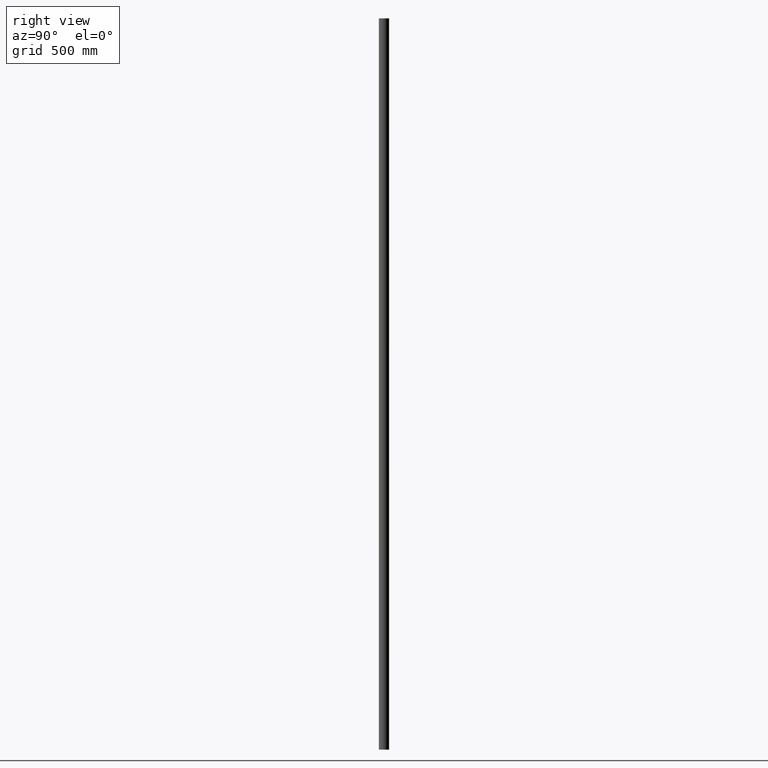
[diagram: clean part render]
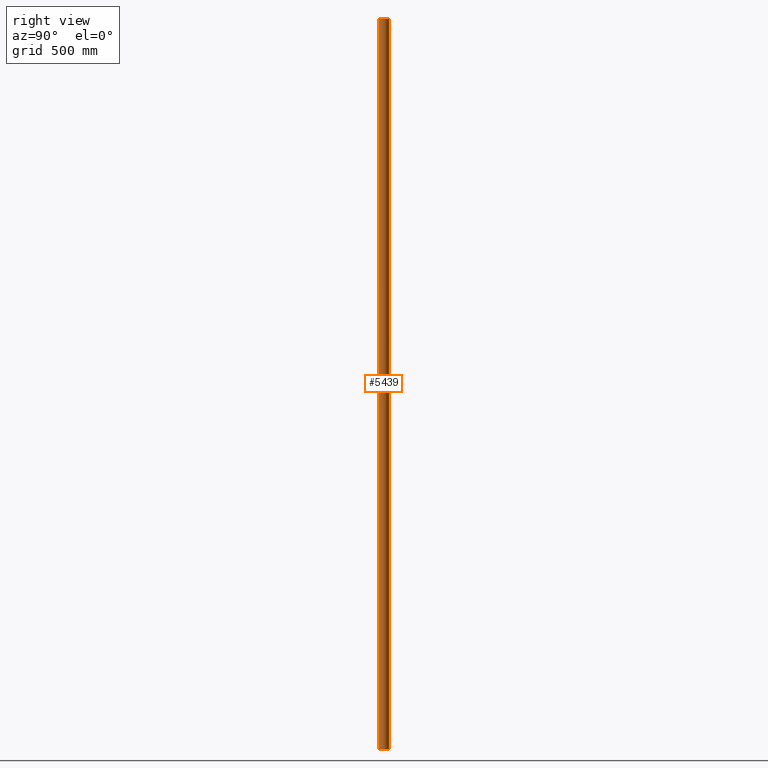
[diagram: same view with one face highlighted and labeled with its STEP entity id]
A machine part, right view. The second image highlights one B-rep face of the part: STEP entity #5439.
In plain terms, the highlighted cylindrical surface (edge-blend (fillet) strip) has radius 24.15 mm, axis along (0, 0, 1).
Its self-contained STEP definition (entity closure, byte-faithful):
#177 = AXIS2_PLACEMENT_3D ( 'NONE', #14639, #7328, #14692 ) ;
#1071 = ORIENTED_EDGE ( 'NONE', *, *, #12041, .T. ) ;
#1720 = VECTOR ( 'NONE', #2581, 1000.000000000000000 ) ;
#2229 = ORIENTED_EDGE ( 'NONE', *, *, #13652, .F. ) ;
#2271 = DIRECTION ( 'NONE',  ( 1.000000000000000000, 0.000000000000000000, 0.000000000000000000 ) ) ;
#2455 = CARTESIAN_POINT ( 'NONE',  ( 1.045905862409840323E-15, 16.97122564813749790, 1500.000000000000000 ) ) ;
#2531 = VERTEX_POINT ( 'NONE', #6953 ) ;
#2581 = DIRECTION ( 'NONE',  ( 0.000000000000000000, 0.000000000000000000, 1.000000000000000000 ) ) ;
#3677 = DIRECTION ( 'NONE',  ( 1.000000000000000000, 0.000000000000000000, 0.000000000000000000 ) ) ;
#4041 = CIRCLE ( 'NONE', #12771, 24.15000000000000213 ) ;
#4381 = CYLINDRICAL_SURFACE ( 'NONE', #177, 24.15000000000000213 ) ;
#4588 = VERTEX_POINT ( 'NONE', #9249 ) ;
#4592 = ORIENTED_EDGE ( 'NONE', *, *, #14587, .T. ) ;
#5439 = ADVANCED_FACE ( 'NONE', ( #10144 ), #4381, .T. ) ;
#5620 = VECTOR ( 'NONE', #7428, 1000.000000000000000 ) ;
#6013 = DIRECTION ( 'NONE',  ( 0.000000000000000000, 0.000000000000000000, 1.000000000000000000 ) ) ;
#6633 = AXIS2_PLACEMENT_3D ( 'NONE', #2455, #6013, #3677 ) ;
#6953 = CARTESIAN_POINT ( 'NONE',  ( -16.89954853273139079, -0.2806658246795150635, -1500.000000000000000 ) ) ;
#7328 = DIRECTION ( 'NONE',  ( 0.000000000000000000, 0.000000000000000000, 1.000000000000000000 ) ) ;
#7421 = ORIENTED_EDGE ( 'NONE', *, *, #8992, .F. ) ;
#7428 = DIRECTION ( 'NONE',  ( 0.000000000000000000, 0.000000000000000000, 1.000000000000000000 ) ) ;
#7951 = VERTEX_POINT ( 'NONE', #14130 ) ;
#8289 = EDGE_LOOP ( 'NONE', ( #2229, #7421, #1071, #4592 ) ) ;
#8920 = CARTESIAN_POINT ( 'NONE',  ( 16.89954853273138013, -0.2806658246795221689, 1500.000000000000000 ) ) ;
#8992 = EDGE_CURVE ( 'NONE', #7951, #10562, #10782, .T. ) ;
#9249 = CARTESIAN_POINT ( 'NONE',  ( -16.89954853273139079, -0.2806658246795150635, 1500.000000000000000 ) ) ;
#9556 = CARTESIAN_POINT ( 'NONE',  ( 1.045905862409840323E-15, 16.97122564813749790, -1500.000000000000000 ) ) ;
#10144 = FACE_OUTER_BOUND ( 'NONE', #8289, .T. ) ;
#10268 = CARTESIAN_POINT ( 'NONE',  ( 16.89954853273138013, -0.2806658246795221689, -1500.000000000000000 ) ) ;
#10562 = VERTEX_POINT ( 'NONE', #8920 ) ;
#10782 = LINE ( 'NONE', #10268, #5620 ) ;
#12041 = EDGE_CURVE ( 'NONE', #7951, #2531, #4041, .T. ) ;
#12771 = AXIS2_PLACEMENT_3D ( 'NONE', #9556, #14463, #2271 ) ;
#13652 = EDGE_CURVE ( 'NONE', #10562, #4588, #13756, .T. ) ;
#13756 = CIRCLE ( 'NONE', #6633, 24.15000000000000213 ) ;
#14130 = CARTESIAN_POINT ( 'NONE',  ( 16.89954853273138013, -0.2806658246795221689, -1500.000000000000000 ) ) ;
#14463 = DIRECTION ( 'NONE',  ( 0.000000000000000000, 0.000000000000000000, 1.000000000000000000 ) ) ;
#14587 = EDGE_CURVE ( 'NONE', #2531, #4588, #15059, .T. ) ;
#14639 = CARTESIAN_POINT ( 'NONE',  ( 1.045905862409840323E-15, 16.97122564813749790, -1500.000000000000000 ) ) ;
#14692 = DIRECTION ( 'NONE',  ( 1.000000000000000000, 0.000000000000000000, 0.000000000000000000 ) ) ;
#14845 = CARTESIAN_POINT ( 'NONE',  ( -16.89954853273139079, -0.2806658246795150635, -1500.000000000000000 ) ) ;
#15059 = LINE ( 'NONE', #14845, #1720 ) ;